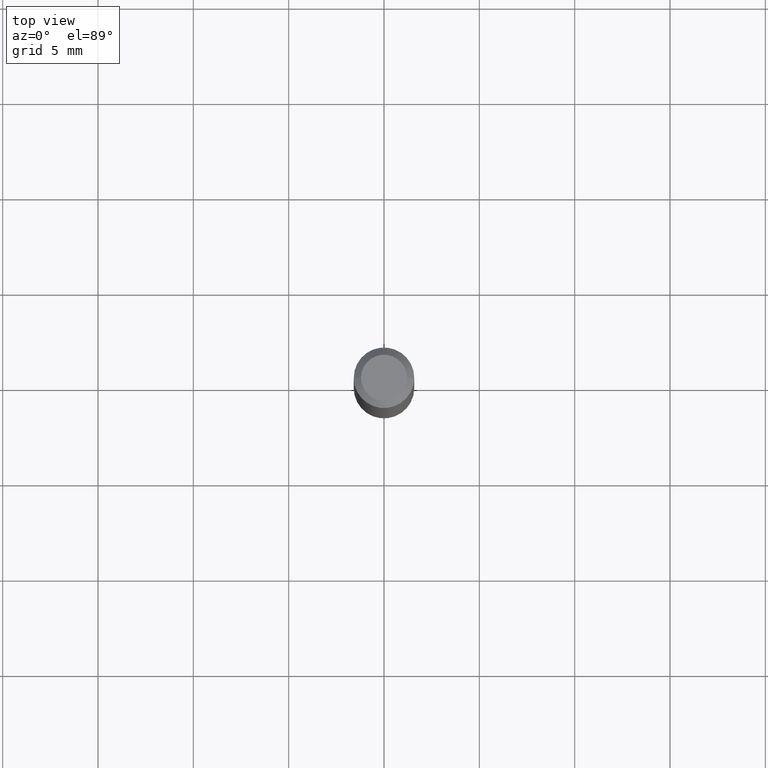
[diagram: clean part render]
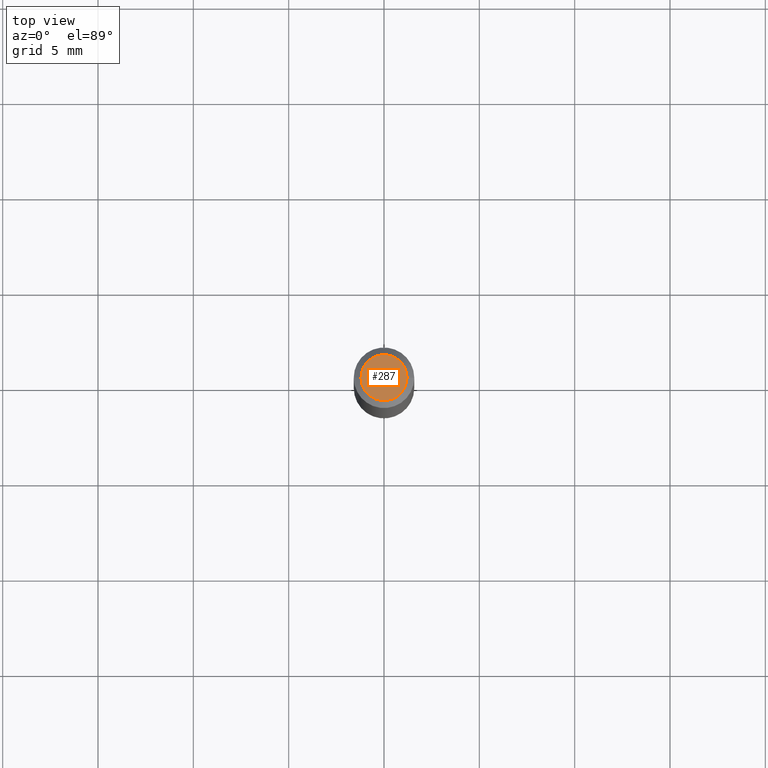
[diagram: same view with one face highlighted and labeled with its STEP entity id]
A machine part, top view. The second image highlights one B-rep face of the part: STEP entity #287.
In plain terms, the highlighted planar face has unit normal (0, -0, -1).
Its self-contained STEP definition (entity closure, byte-faithful):
#6 = AXIS2_PLACEMENT_3D ( 'NONE', #444, #440, #277 ) ;
#15 = DIRECTION ( 'NONE',  ( 2.438088387897960049E-29, -3.491481338843145188E-15, -1.000000000000000000 ) ) ;
#17 = CARTESIAN_POINT ( 'NONE',  ( 0.04749999999999999362, -4.035134999187553478E-16, 1.447116732001550281E-15 ) ) ;
#18 = ORIENTED_EDGE ( 'NONE', *, *, #316, .T. ) ;
#72 = VERTEX_POINT ( 'NONE', #214 ) ;
#80 = FACE_OUTER_BOUND ( 'NONE', #346, .T. ) ;
#93 = DIRECTION ( 'NONE',  ( -1.000000000000000000, 6.982962677686265922E-15, -4.876176775795935793E-29 ) ) ;
#102 = DIRECTION ( 'NONE',  ( 1.000000000000000000, -6.982962677686267499E-15, 5.108144071313017768E-29 ) ) ;
#136 = CIRCLE ( 'NONE', #228, 0.04749999999999999362 ) ;
#144 = AXIS2_PLACEMENT_3D ( 'NONE', #328, #15, #93 ) ;
#214 = CARTESIAN_POINT ( 'NONE',  ( -0.04749999999999999362, 3.578768372314235651E-16, 1.447116732001545153E-15 ) ) ;
#228 = AXIS2_PLACEMENT_3D ( 'NONE', #249, #375, #102 ) ;
#229 = PLANE ( 'NONE',  #144 ) ;
#249 = CARTESIAN_POINT ( 'NONE',  ( -3.538878827018360888E-44, 5.052581064911080951E-30, 1.447116732001547520E-15 ) ) ;
#255 = ORIENTED_EDGE ( 'NONE', *, *, #437, .T. ) ;
#259 = VERTEX_POINT ( 'NONE', #17 ) ;
#277 = DIRECTION ( 'NONE',  ( 1.000000000000000000, -6.982962677686267499E-15, 5.108144071313017768E-29 ) ) ;
#287 = ADVANCED_FACE ( 'NONE', ( #80 ), #229, .F. ) ;
#316 = EDGE_CURVE ( 'NONE', #259, #72, #408, .T. ) ;
#328 = CARTESIAN_POINT ( 'NONE',  ( 3.316907271900976096E-16, 0.04749999999999999362, 5.577130024057243141E-16 ) ) ;
#346 = EDGE_LOOP ( 'NONE', ( #255, #18 ) ) ;
#375 = DIRECTION ( 'NONE',  ( -2.445468806185136597E-29, 3.491481338843145583E-15, 1.000000000000000000 ) ) ;
#408 = CIRCLE ( 'NONE', #6, 0.04749999999999999362 ) ;
#437 = EDGE_CURVE ( 'NONE', #72, #259, #136, .T. ) ;
#440 = DIRECTION ( 'NONE',  ( -2.445468806185136597E-29, 3.491481338843145583E-15, 1.000000000000000000 ) ) ;
#444 = CARTESIAN_POINT ( 'NONE',  ( -3.538878827018360888E-44, 5.052581064911080951E-30, 1.447116732001547520E-15 ) ) ;